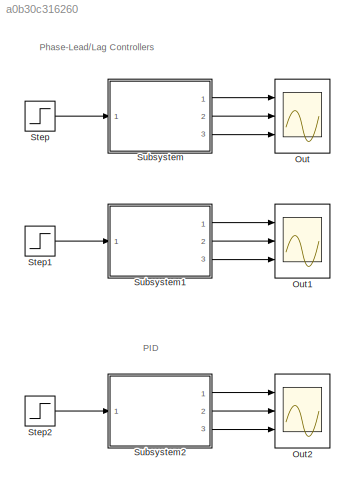
MODEL slx_a0b30c316260
KIND model
CONFIG AbsTol = auto
CONFIG EnableMultiTasking = off
CONFIG FixedStep = auto
CONFIG MaxStep = auto
CONFIG MinStep = auto
CONFIG RelTol = 1e-3
CONFIG SampleTimeConstraint = Unconstrained
CONFIG Solver = VariableStepAuto
CONFIG SolverName = VariableStepAuto
CONFIG StartTime = 0.0
CONFIG StopTime = 25
BLOCK [Scope] Out
  Floating = off
  NumInputPorts = 3
  Ports = [3]
  ScopeSpecificationString = Simulink.scopes.TimeScopeBlockCfg('CurrentConfiguration', extmgr.ConfigurationSet(extmgr.Configuration('Core','General UI',true),extmgr.Configuration('Core','Source UI',true),extmgr.Configuration('Sources','WiredSimulink',true),extmgr.Configuration('Visuals','Time Domain',true,'SerializedDisplays',{struct('MinYLimReal','-19129709651337.72266','MaxYLimReal','15422730919473.85742','YLabelReal','','M...<+1577ch>
BLOCK [Scope] Out1
  Commented = on
  Floating = off
  NumInputPorts = 3
  Ports = [3]
  ScopeSpecificationString = Simulink.scopes.TimeScopeBlockCfg('CurrentConfiguration', extmgr.ConfigurationSet(extmgr.Configuration('Core','General UI',true),extmgr.Configuration('Core','Source UI',true),extmgr.Configuration('Sources','WiredSimulink',true,'DataLoggingVariableName','ScopeData1'),extmgr.Configuration('Visuals','Time Domain',true,'SerializedDisplays',{struct('MinYLimReal','-76228.21273','MaxYLimReal','8935.7165'...<+1566ch>
BLOCK [Scope] Out2
  Commented = on
  Floating = off
  NumInputPorts = 3
  Ports = [3]
  ScopeSpecificationString = Simulink.scopes.TimeScopeBlockCfg('CurrentConfiguration', extmgr.ConfigurationSet(extmgr.Configuration('Core','General UI',true),extmgr.Configuration('Core','Source UI',true),extmgr.Configuration('Sources','WiredSimulink',true,'DataLoggingVariableName','ScopeData1'),extmgr.Configuration('Visuals','Time Domain',true,'SerializedDisplays',{struct('MinYLimReal','-502740.38106','MaxYLimReal','69226.325...<+1547ch>
BLOCK [Step] Step
  SampleTime = 0
BLOCK [Step] Step1
  Commented = on
  SampleTime = 0
BLOCK [Step] Step2
  Commented = on
  SampleTime = 0
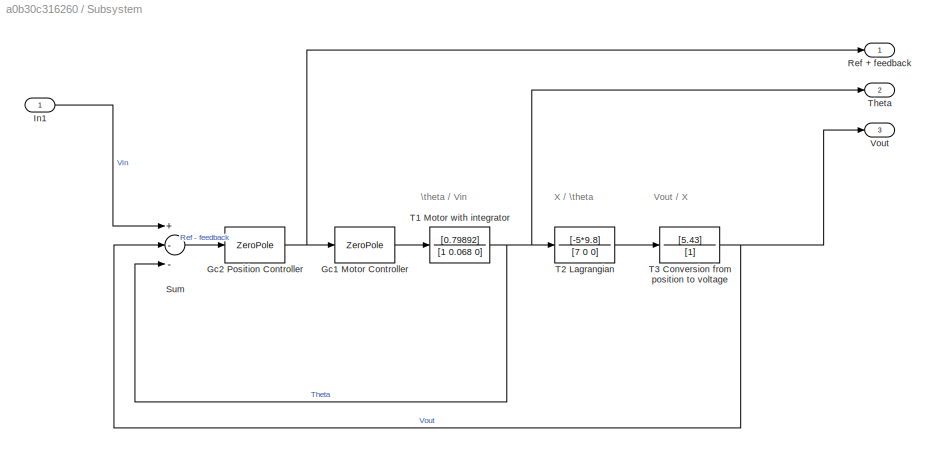
BLOCK [SubSystem] Subsystem
  Ports = [1, 3]
  RequestExecContextInheritance = off
BLOCK [ZeroPole] Subsystem/Gc1 Motor Controller
  Gain = [K_gc1]
  Poles = [p_gc1]
  Zeros = [z_gc1]
BLOCK [ZeroPole] Subsystem/Gc2 Position Controller
  Gain = [K_gc2]
  Poles = [p_gc2]
  Zeros = [z_gc2]
BLOCK [Inport] Subsystem/In1
  IconDisplay = Port number
BLOCK [Outport] Subsystem/Ref + feedback
  IconDisplay = Port number
BLOCK [Sum] Subsystem/Sum
  InputSameDT = off
  Inputs = +--
  OutDataTypeStr = Inherit: Inherit via internal rule
  Ports = [3, 1]
  SaturateOnIntegerOverflow = off
BLOCK [TransferFcn] Subsystem/T1 Motor with integrator 
  Denominator = [1 0.068 0]
  Numerator = [0.79892]
BLOCK [TransferFcn] Subsystem/T2 Lagrangian 
  Denominator = [7 0 0]
  Numerator = [-5*9.8]
BLOCK [TransferFcn] Subsystem/T3 Conversion from position to voltage 
  Denominator = [1]
  Numerator = [5.43]
BLOCK [Outport] Subsystem/Theta
  IconDisplay = Port number
  Port = 2
BLOCK [Outport] Subsystem/Vout
  IconDisplay = Port number
  Port = 3
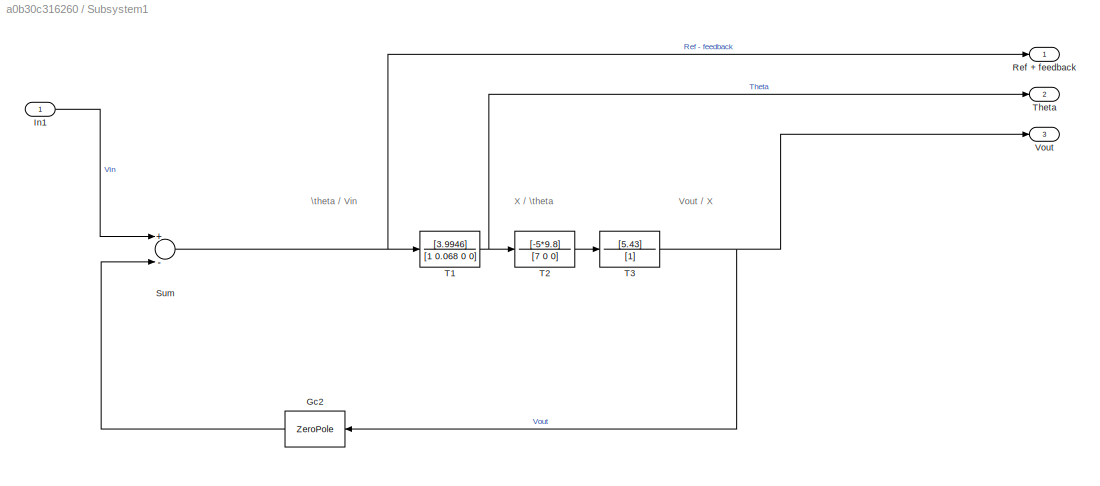
BLOCK [SubSystem] Subsystem1
  Commented = on
  Ports = [1, 3]
  RequestExecContextInheritance = off
BLOCK [ZeroPole] Subsystem1/Gc2
  Gain = [K_gc2]
  Poles = [p_gc2]
  Zeros = [z_gc2]
BLOCK [Inport] Subsystem1/In1
  IconDisplay = Port number
BLOCK [Outport] Subsystem1/Ref + feedback
  IconDisplay = Port number
BLOCK [Sum] Subsystem1/Sum
  InputSameDT = off
  Inputs = +-
  OutDataTypeStr = Inherit: Inherit via internal rule
  Ports = [2, 1]
  SaturateOnIntegerOverflow = off
BLOCK [TransferFcn] Subsystem1/T1 
  Denominator = [1 0.068 0 0]
  Numerator = [3.9946]
BLOCK [TransferFcn] Subsystem1/T2 
  Denominator = [7 0 0]
  Numerator = [-5*9.8]
BLOCK [TransferFcn] Subsystem1/T3 
  Denominator = [1]
  Numerator = [5.43]
BLOCK [Outport] Subsystem1/Theta
  IconDisplay = Port number
  Port = 2
BLOCK [Outport] Subsystem1/Vout
  IconDisplay = Port number
  Port = 3
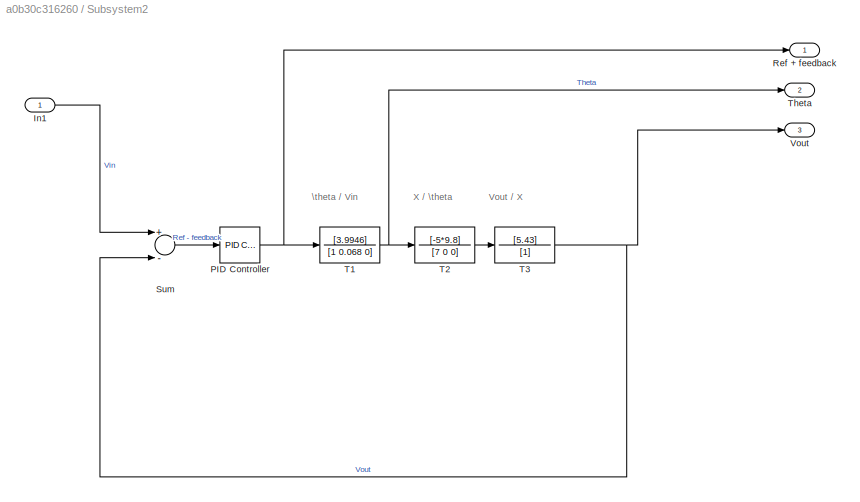
BLOCK [SubSystem] Subsystem2
  Commented = on
  Ports = [1, 3]
  RequestExecContextInheritance = off
BLOCK [Inport] Subsystem2/In1
  IconDisplay = Port number
BLOCK [Reference] Subsystem2/PID Controller  REF=simulink/Continuous/PID Controller
  Ports = [1, 1]
  SourceBlock = simulink/Continuous/PID Controller
  SourceProductBaseCode = SL
  SourceProductName = Simulink
  SourceType = PID 1dof
BLOCK [Outport] Subsystem2/Ref + feedback
  IconDisplay = Port number
BLOCK [Sum] Subsystem2/Sum
  InputSameDT = off
  Inputs = +-
  OutDataTypeStr = Inherit: Inherit via internal rule
  Ports = [2, 1]
  SaturateOnIntegerOverflow = off
BLOCK [TransferFcn] Subsystem2/T1 
  Denominator = [1 0.068 0]
  Numerator = [3.9946]
BLOCK [TransferFcn] Subsystem2/T2 
  Denominator = [7 0 0]
  Numerator = [-5*9.8]
BLOCK [TransferFcn] Subsystem2/T3 
  Denominator = [1]
  Numerator = [5.43]
BLOCK [Outport] Subsystem2/Theta
  IconDisplay = Port number
  Port = 2
BLOCK [Outport] Subsystem2/Vout
  IconDisplay = Port number
  Port = 3
ANNOTATION (root): PID
ANNOTATION (root): Phase-Lead/Lag Controllers
ANNOTATION Subsystem: Vout / X
ANNOTATION Subsystem: X / \theta
ANNOTATION Subsystem: \theta / Vin
ANNOTATION Subsystem1: Vout / X
ANNOTATION Subsystem1: X / \theta
ANNOTATION Subsystem1: \theta / Vin
ANNOTATION Subsystem2: Vout / X
ANNOTATION Subsystem2: X / \theta
ANNOTATION Subsystem2: \theta / Vin
LINE Step1:1 -> Subsystem1:1
LINE Step2:1 -> Subsystem2:1
LINE Step:1 -> Subsystem:1
LINE Subsystem/Gc1 Motor Controller:1 -> Subsystem/T1 Motor with integrator :1
NET Subsystem/Gc2 Position Controller:1 -> Subsystem/Gc1 Motor Controller:1, Subsystem/Ref + feedback:1
LINE Subsystem/In1:1 -> Subsystem/Sum:1
LINE Subsystem/Sum:1 -> Subsystem/Gc2 Position Controller:1
NET Subsystem/T1 Motor with integrator :1 -> Subsystem/Sum:3, Subsystem/T2 Lagrangian :1, Subsystem/Theta:1
LINE Subsystem/T2 Lagrangian :1 -> Subsystem/T3 Conversion from position to voltage :1
NET Subsystem/T3 Conversion from position to voltage :1 -> Subsystem/Sum:2, Subsystem/Vout:1
LINE Subsystem1/Gc2:1 -> Subsystem1/Sum:2
LINE Subsystem1/In1:1 -> Subsystem1/Sum:1
NET Subsystem1/Sum:1 -> Subsystem1/Ref + feedback:1, Subsystem1/T1 :1
NET Subsystem1/T1 :1 -> Subsystem1/T2 :1, Subsystem1/Theta:1
LINE Subsystem1/T2 :1 -> Subsystem1/T3 :1
NET Subsystem1/T3 :1 -> Subsystem1/Gc2:1, Subsystem1/Vout:1
LINE Subsystem1:1 -> Out1:1
LINE Subsystem1:2 -> Out1:2
LINE Subsystem1:3 -> Out1:3
LINE Subsystem2/In1:1 -> Subsystem2/Sum:1
NET Subsystem2/PID Controller:1 -> Subsystem2/Ref + feedback:1, Subsystem2/T1 :1
LINE Subsystem2/Sum:1 -> Subsystem2/PID Controller:1
NET Subsystem2/T1 :1 -> Subsystem2/T2 :1, Subsystem2/Theta:1
LINE Subsystem2/T2 :1 -> Subsystem2/T3 :1
NET Subsystem2/T3 :1 -> Subsystem2/Sum:2, Subsystem2/Vout:1
LINE Subsystem2:1 -> Out2:1
LINE Subsystem2:2 -> Out2:2
LINE Subsystem2:3 -> Out2:3
LINE Subsystem:1 -> Out:1
LINE Subsystem:2 -> Out:2
LINE Subsystem:3 -> Out:3
note: NET lines group one-source signal fan-out (src -> all destinations, sorted); 1:1 wires keep LINE
